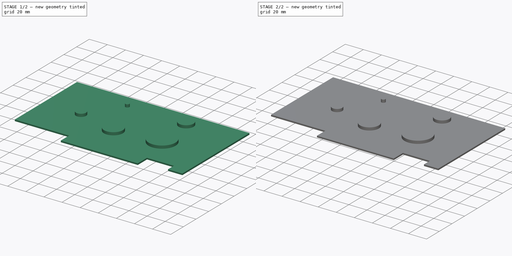
[diagram: build sequence overview — one tinted view per stage of 2, left to right]
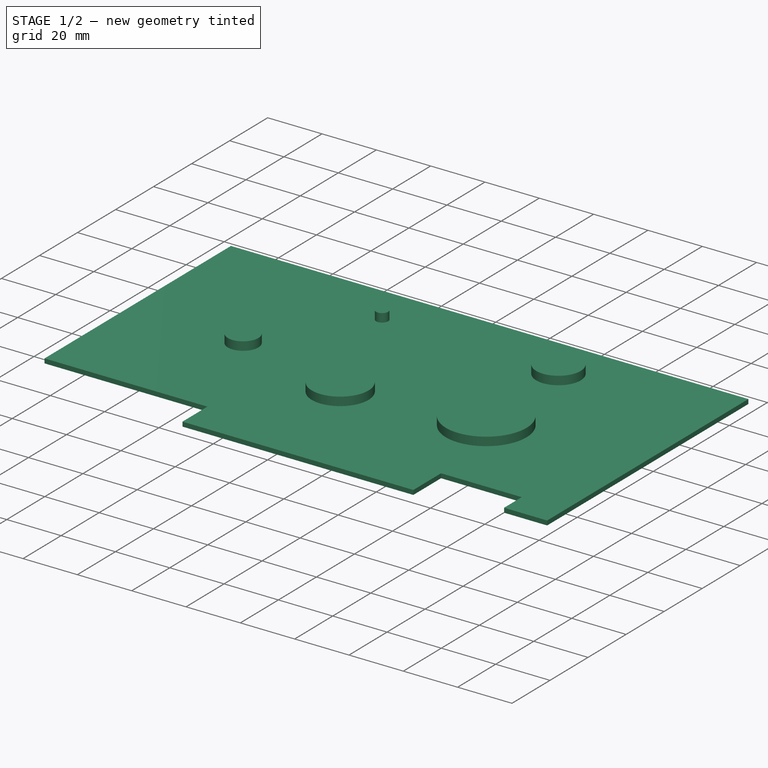
[diagram: stage 1 of 2 — iso view after this stage's code; geometry added in this stage tinted green]
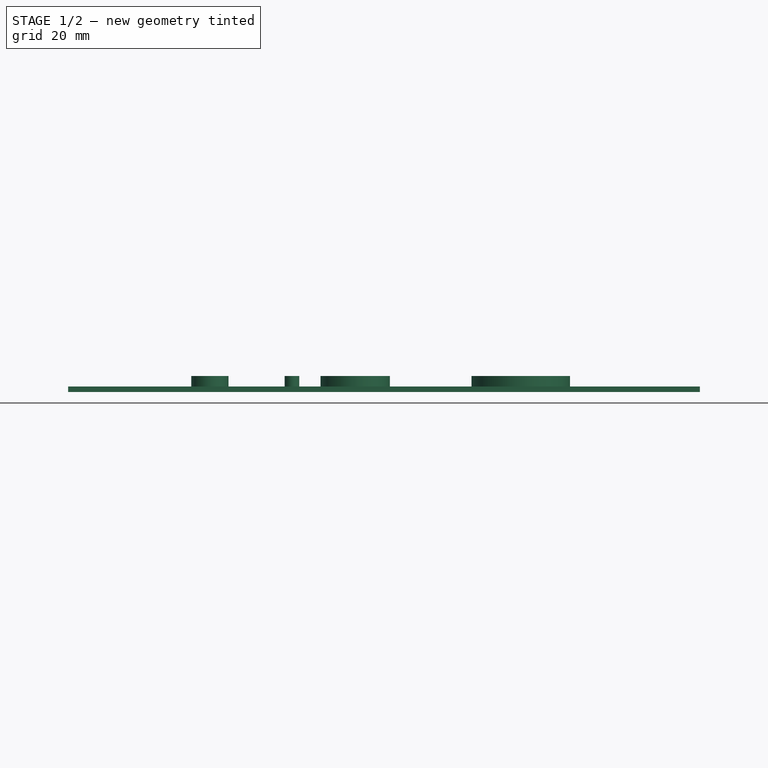
[diagram: stage 1 of 2 — front view after this stage's code; geometry added in this stage tinted green]
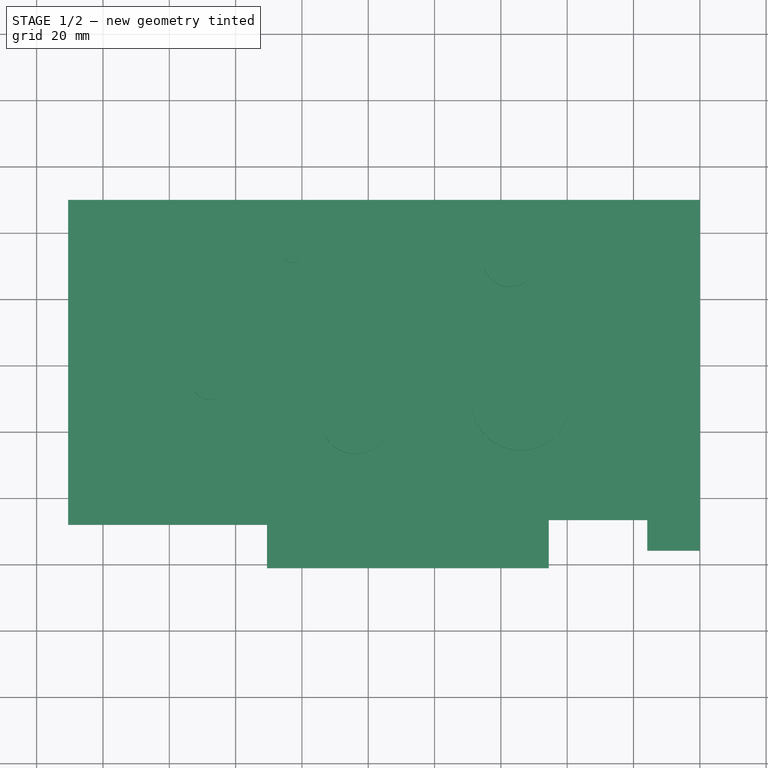
[diagram: stage 1 of 2 — top view after this stage's code; geometry added in this stage tinted green]
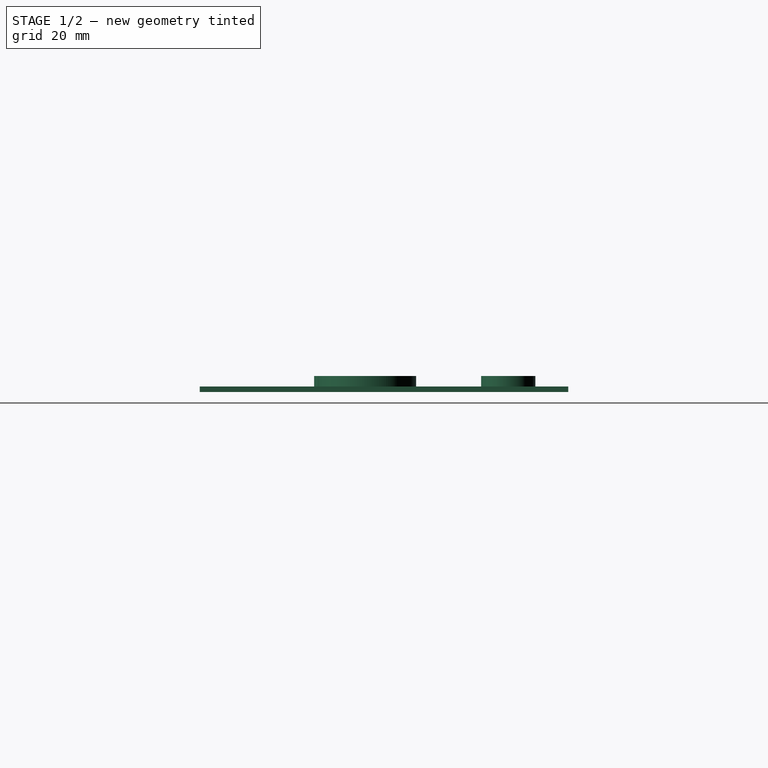
[diagram: stage 1 of 2 — right view after this stage's code; geometry added in this stage tinted green]
FCSTD DOCUMENT  (FreeCAD 0.21R33771 (Git))
Label: gpu-bottom
License: All rights reserved
LicenseURL: http://en.wikipedia.org/wiki/All_rights_reserved
objects: Sketcher::SketchObject×3, PartDesign::Pad×3, PartDesign::Body×1
note: 10 computed .brp shape members not serialized (recipe doc carries the construction recipe); baked Part::Feature solids carry a one-line shape summary decoded from their .brp

FEATURE [Sketcher::SketchObject] Sketch
  FullyConstrained = true
  MapMode = 5
  Support = -> [XY_Plane]
  sketch-geometry (10):
    g0: LineSegment StartX=-110.5 StartY=50 StartZ=0 EndX=80 EndY=50 EndZ=0
    g1: LineSegment StartX=-110.5 StartY=-48 StartZ=0 EndX=-110.5 EndY=50 EndZ=0
    g2: LineSegment StartX=34.45 StartY=-46.55 StartZ=0 EndX=34.45 EndY=-61.1 EndZ=0
    g3: LineSegment StartX=34.45 StartY=-61.1 StartZ=0 EndX=-50.55 EndY=-61.1 EndZ=0
    g4: LineSegment StartX=-50.55 StartY=-61.1 StartZ=0 EndX=-50.55 EndY=-48 EndZ=0
    g5: LineSegment StartX=80 StartY=-55.8 StartZ=0 EndX=64.15 EndY=-55.8 EndZ=0
    g6: LineSegment StartX=64.15 StartY=-55.8 StartZ=0 EndX=64.15 EndY=-46.55 EndZ=0
    g7: LineSegment StartX=-110.5 StartY=-48 StartZ=0 EndX=-50.55 EndY=-48 EndZ=0
    g8: LineSegment StartX=34.45 StartY=-46.55 StartZ=0 EndX=64.15 EndY=-46.55 EndZ=0
    g9: LineSegment StartX=80 StartY=50 StartZ=0 EndX=80 EndY=-55.8 EndZ=0
  constraints (30):
    c: Coincident(g1,g0)
    c: Horizontal(g0)
    c: Vertical(g1)
    c: Coincident(g2,g3)
    c: Coincident(g3,g4)
    c: Horizontal(g3)
    c: Vertical(g2)
    c: Vertical(g4)
    c: Coincident(g5,g6)
    c: Horizontal(g5)
    c: Vertical(g6)
    c: DistanceY(g2,g2) = 14.55
    c: DistanceX(g0,g0) = 190.5
    c: DistanceY(g1,g1) = 98
    c: DistanceX(g5,g5) = 15.85
    c: DistanceX(g2,g5) = 29.7
    c: DistanceX(g3,g3) = 85
    c: DistanceY(g5,g0) = 105.8
    c: Coincident(g7,g1)
    c: Coincident(g7,g4)
    c: Horizontal(g7)
    c: Coincident(g8,g2)
    c: Coincident(g8,g6)
    c: Horizontal(g8)
    c: DistanceY(g-1,g0) = 50
    c: DistanceX(g-1,g0) = 80
    c: DistanceY(g3,g0) = 111.1
    c: Coincident(g9,g0)
    c: Coincident(g9,g5)
    c: Vertical(g9)
FEATURE [PartDesign::Pad] Pad
  Direction = (0,0,1)
  Length = 1.65
  Length2 = 10
  Profile = -> Sketch
  ReferenceAxis = -> Sketch [N_Axis]
  Type = 0
FEATURE [Sketcher::SketchObject] Sketch001
  FullyConstrained = false
  MapMode = 5
  Placement = pos=(0,0,1.65) rot=(0,0,1;0rad)
  Support = -> [Pad]
  sketch-geometry (5):
    g0: Circle CenterX=-43.0153 CenterY=33.1335 CenterZ=0 NormalX=0 NormalY=0 NormalZ=1 AngleXU=0 Radius=2.19545
    g1: Circle CenterX=22.7468 CenterY=31.9156 CenterZ=0 NormalX=0 NormalY=0 NormalZ=1 AngleXU=0 Radius=8.19202
    g2: Circle CenterX=-67.7776 CenterY=-4.61884 CenterZ=0 NormalX=0 NormalY=0 NormalZ=1 AngleXU=0 Radius=5.61386
    g3: Circle CenterX=25.9943 CenterY=-10.7079 CenterZ=0 NormalX=0 NormalY=0 NormalZ=1 AngleXU=0 Radius=14.8653
    g4: Circle CenterX=-23.9362 CenterY=-16.1881 CenterZ=0 NormalX=0 NormalY=0 NormalZ=1 AngleXU=0 Radius=10.4485
FEATURE [PartDesign::Pad] Pad001
  BaseFeature = -> Pad
  Direction = (0,0,1)
  Length = 3.15
  Length2 = 10
  Profile = -> Sketch001
  ReferenceAxis = -> Sketch001 [N_Axis]
  Type = 0
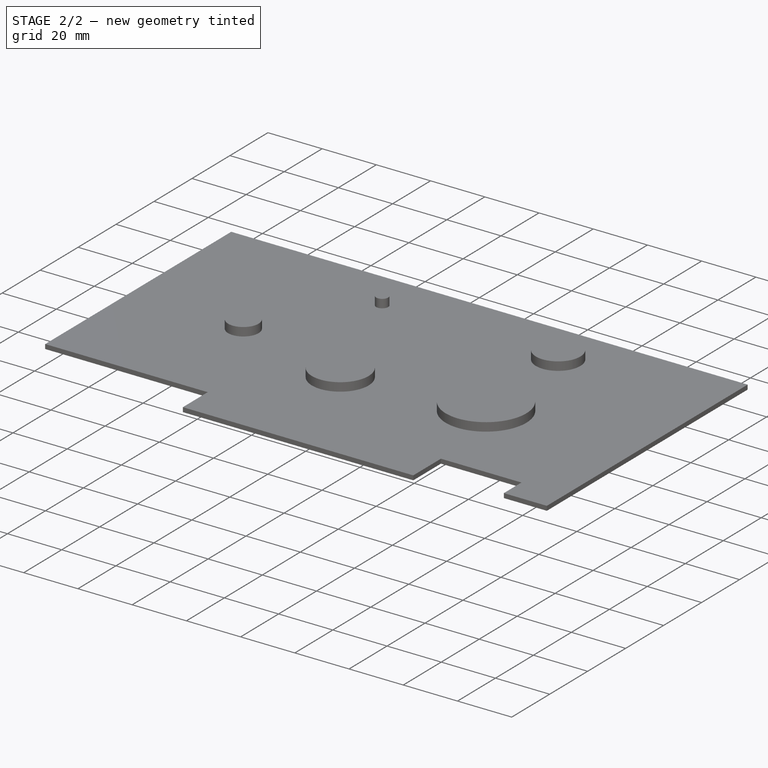
[diagram: stage 2 of 2 — iso view after this stage's code; geometry added in this stage tinted green]
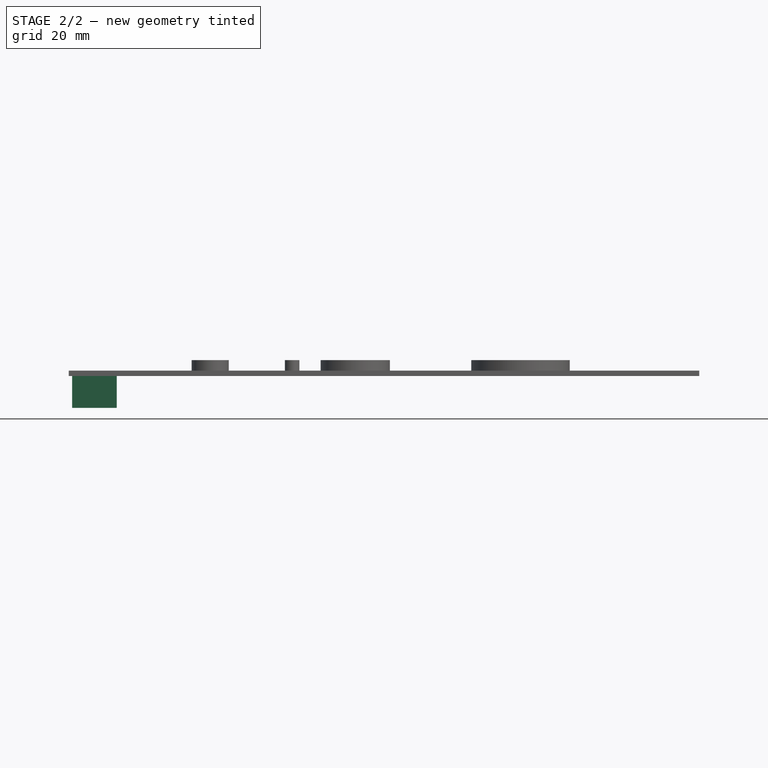
[diagram: stage 2 of 2 — front view after this stage's code; geometry added in this stage tinted green]
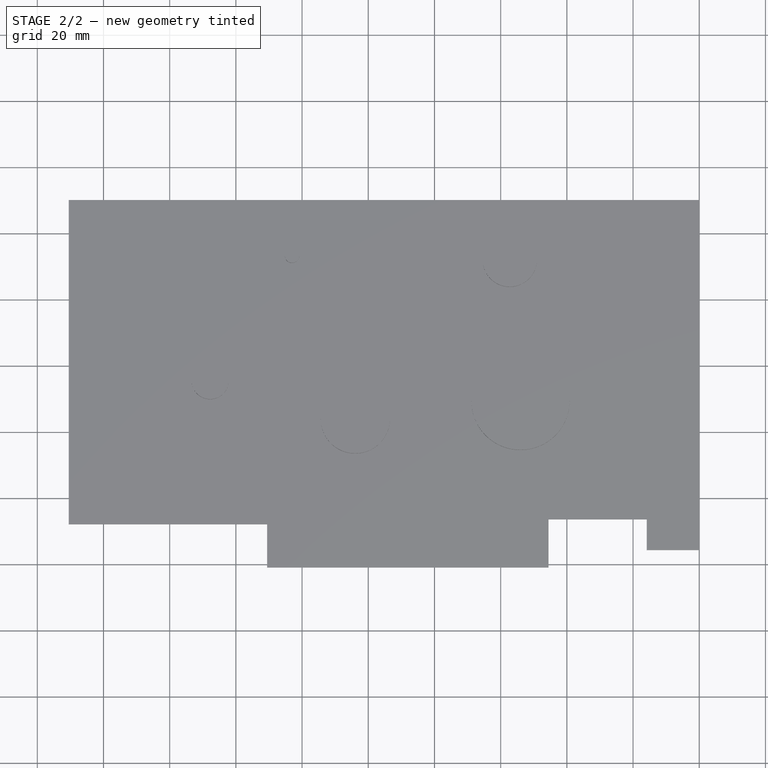
[diagram: stage 2 of 2 — top view after this stage's code; geometry added in this stage tinted green]
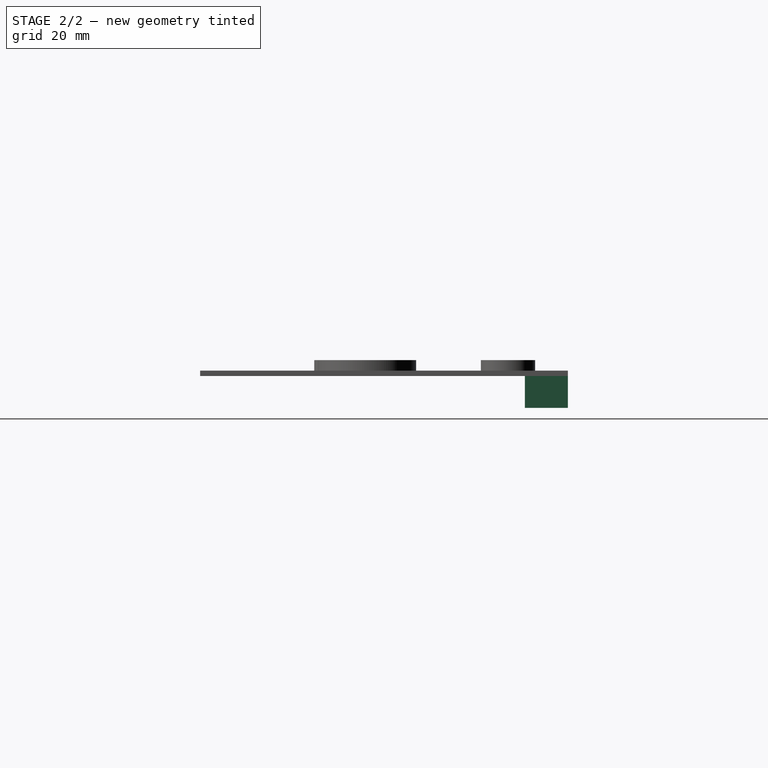
[diagram: stage 2 of 2 — right view after this stage's code; geometry added in this stage tinted green]
FEATURE [Sketcher::SketchObject] Sketch002
  FullyConstrained = true
  MapMode = 5
  Placement = pos=(0,0,0) rot=(1,0,0;3.14159rad)
  Support = -> [Pad001]
  sketch-geometry (4):
    g0: LineSegment StartX=-109.5 StartY=-37 StartZ=0 EndX=-96 EndY=-37 EndZ=0
    g1: LineSegment StartX=-96 StartY=-37 StartZ=0 EndX=-96 EndY=-50 EndZ=0
    g2: LineSegment StartX=-96 StartY=-50 StartZ=0 EndX=-109.5 EndY=-50 EndZ=0
    g3: LineSegment StartX=-109.5 StartY=-50 StartZ=0 EndX=-109.5 EndY=-37 EndZ=0
  constraints (12):
    c: Coincident(g0,g1)
    c: Coincident(g1,g2)
    c: Coincident(g2,g3)
    c: Coincident(g3,g0)
    c: Horizontal(g0)
    c: Horizontal(g2)
    c: Vertical(g1)
    c: Vertical(g3)
    c: DistanceX(g0,g-1) = 96
    c: DistanceX(g0,g0) = -13.5
    c: DistanceY(g1,g1) = 13
    c: DistanceY(g0,g-1) = 37
FEATURE [PartDesign::Pad] Pad002
  BaseFeature = -> Pad001
  Direction = (0,0,-1)
  Length = 9.6
  Length2 = 10
  Profile = -> Sketch002
  ReferenceAxis = -> Sketch002 [N_Axis]
  Type = 0
FEATURE [PartDesign::Body] Body  label="实体"
  Group = -> [Sketch,Pad,Sketch001,Pad001,Sketch002,Pad002]
  Origin = -> Origin
  Tip = -> Pad002
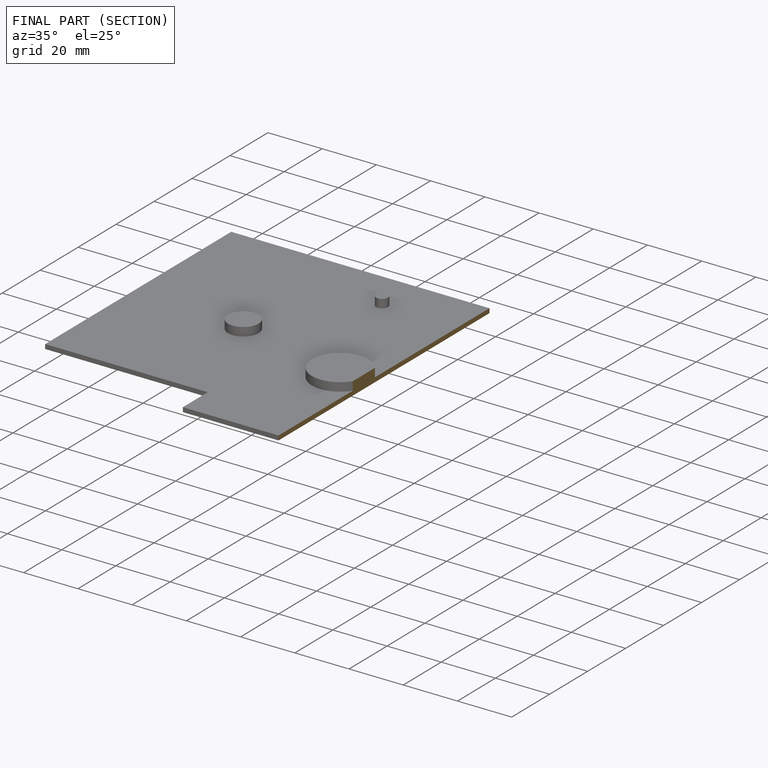
[diagram: finished part — half-section view (interior)]
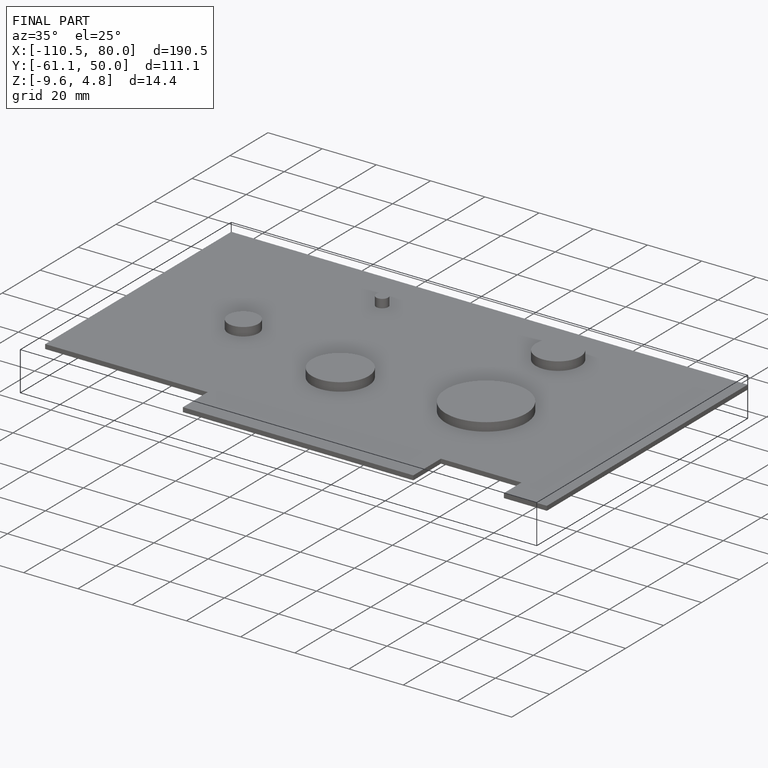
[diagram: finished part — iso view with bounding-box wireframe]
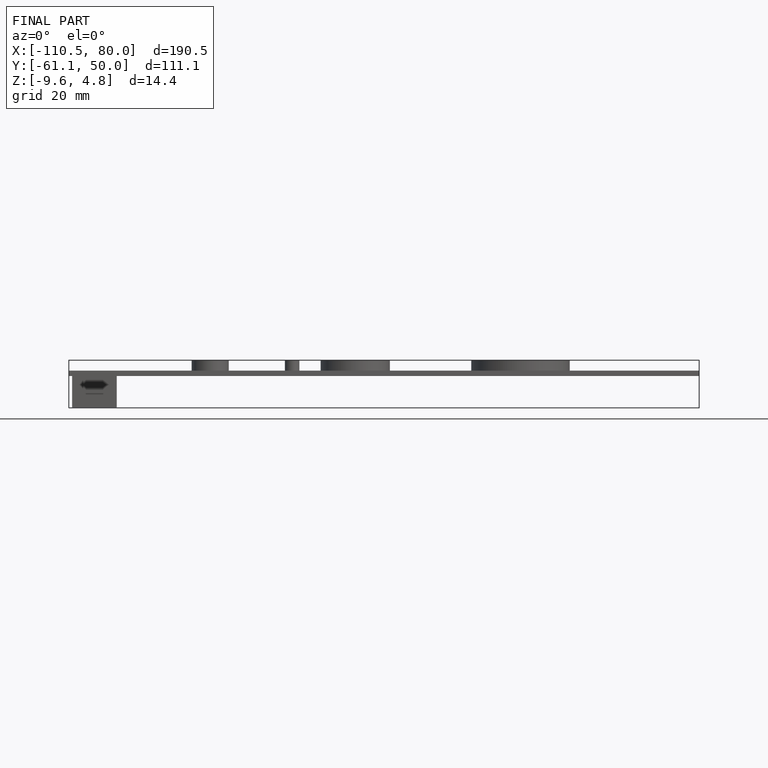
[diagram: finished part — front view with bounding-box wireframe]
